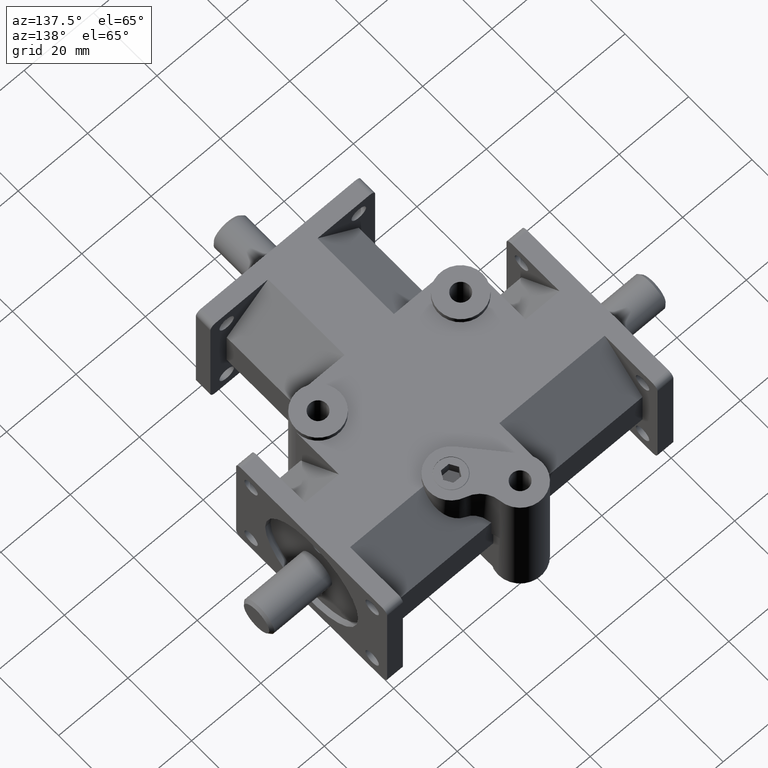
[diagram: clean part render]
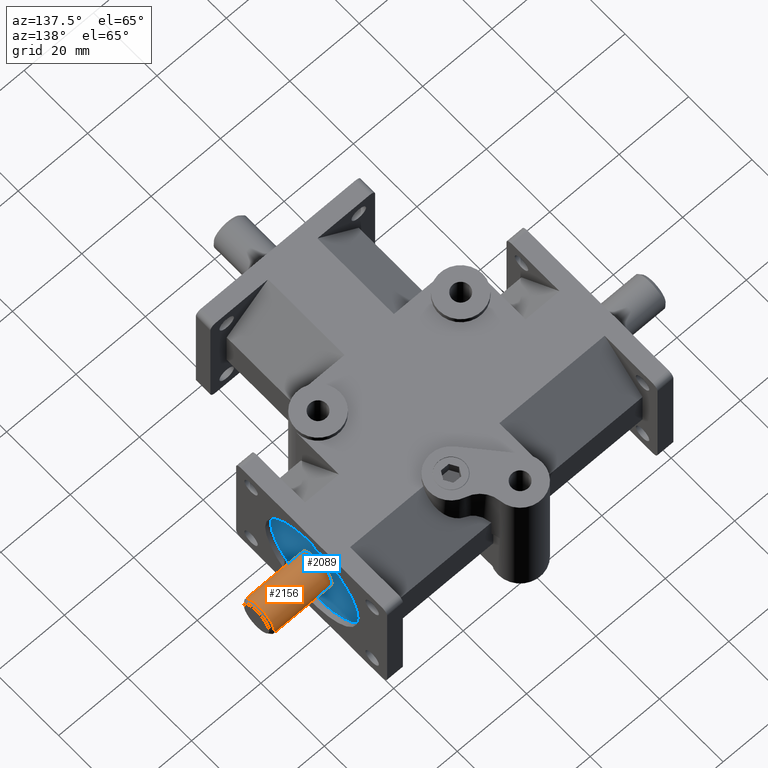
[diagram: same view with the hole feature highlighted: cylindrical wall and planar end face, labeled with their STEP entity ids]
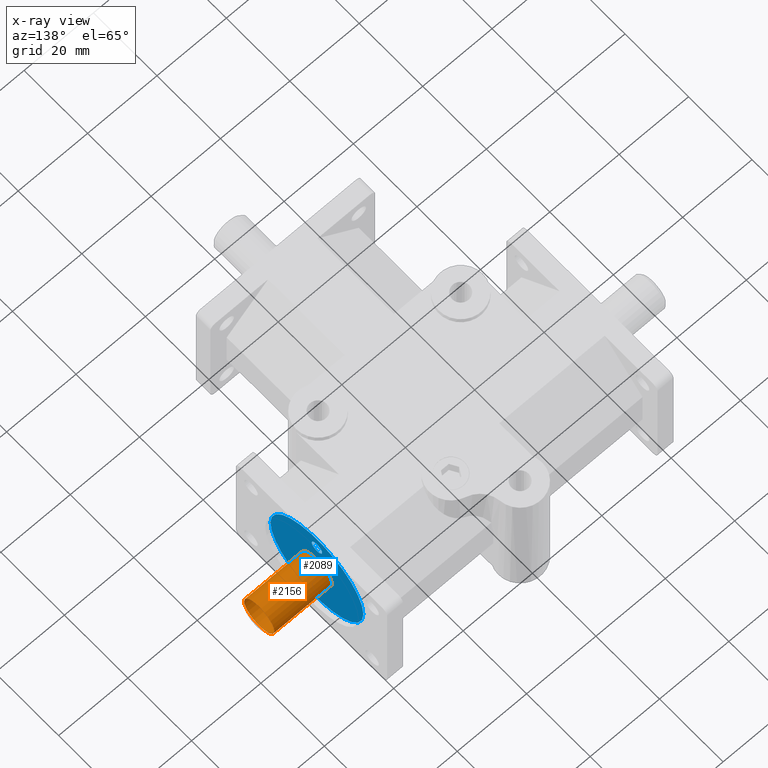
[diagram: x-ray of the same camera — body ghosted, the hole faces saturated]
A machine part, auxiliary view. The highlighted faces form one hole feature of diameter 9.525 mm: the cylindrical wall (entity #2156, orange) and its adjacent planar end face (entity #2089, blue) — they share a circular edge in the B-rep.
The next image is the same camera in x-ray (body ghosted, the hole faces saturated) — the bore reads through the body.
Wall:
#218=FACE_OUTER_BOUND('',#375,.T.);
#375=EDGE_LOOP('',(#1863,#1864,#1865,#1866,#1867));
#439=CIRCLE('',#2246,0.1875);
#512=CIRCLE('',#2386,0.1875);
#513=CIRCLE('',#2387,0.1875);
#691=LINE('',#3626,#886);
#886=VECTOR('',#2969,0.1875);
#940=VERTEX_POINT('',#3169);
#1099=VERTEX_POINT('',#3622);
#1100=VERTEX_POINT('',#3623);
#1151=EDGE_CURVE('',#940,#940,#439,.T.);
#1378=EDGE_CURVE('',#1099,#1100,#512,.T.);
#1379=EDGE_CURVE('',#1100,#1099,#513,.T.);
#1380=EDGE_CURVE('',#1100,#940,#691,.T.);
#1863=ORIENTED_EDGE('',*,*,#1378,.F.);
#1864=ORIENTED_EDGE('',*,*,#1379,.F.);
#1865=ORIENTED_EDGE('',*,*,#1380,.T.);
#1866=ORIENTED_EDGE('',*,*,#1151,.F.);
#1867=ORIENTED_EDGE('',*,*,#1380,.F.);
#2058=CYLINDRICAL_SURFACE('',#2385,0.1875);
#2156=ADVANCED_FACE('',(#218),#2058,.T.);
#2246=AXIS2_PLACEMENT_3D('',#3170,#2531,#2532);
#2385=AXIS2_PLACEMENT_3D('',#3621,#2963,#2964);
#2386=AXIS2_PLACEMENT_3D('',#3624,#2965,#2966);
#2387=AXIS2_PLACEMENT_3D('',#3625,#2967,#2968);
#2531=DIRECTION('center_axis',(-1.,0.,0.));
#2532=DIRECTION('ref_axis',(0.,1.,0.));
#2963=DIRECTION('center_axis',(1.,0.,0.));
#2964=DIRECTION('ref_axis',(0.,1.,0.));
#2965=DIRECTION('center_axis',(1.,0.,0.));
#2966=DIRECTION('ref_axis',(0.,-1.,0.));
#2967=DIRECTION('center_axis',(1.,0.,0.));
#2968=DIRECTION('ref_axis',(0.,-1.,0.));
#2969=DIRECTION('',(-1.,0.,0.));
#3169=CARTESIAN_POINT('',(1.565,2.,-2.29621274840129E-17));
#3170=CARTESIAN_POINT('Origin',(1.565,2.1875,0.));
#3621=CARTESIAN_POINT('Origin',(1.625,2.1875,0.));
#3622=CARTESIAN_POINT('',(2.22,2.375,2.29613691341696E-17));
#3623=CARTESIAN_POINT('',(2.22,2.,-2.29621274840129E-17));
#3624=CARTESIAN_POINT('Origin',(2.22,2.1875,0.));
#3625=CARTESIAN_POINT('Origin',(2.22,2.1875,0.));
#3626=CARTESIAN_POINT('',(1.625,2.,-2.29621274840129E-17));
End face:
#24=FACE_BOUND('',#274,.T.);
#25=FACE_BOUND('',#275,.T.);
#26=FACE_BOUND('',#276,.T.);
#72=PLANE('',#2245);
#151=FACE_OUTER_BOUND('',#273,.T.);
#273=EDGE_LOOP('',(#1474));
#274=EDGE_LOOP('',(#1475));
#275=EDGE_LOOP('',(#1476));
#276=EDGE_LOOP('',(#1477));
#424=CIRCLE('',#2219,0.064);
#426=CIRCLE('',#2223,0.064);
#435=CIRCLE('',#2239,0.5755);
#439=CIRCLE('',#2246,0.1875);
#925=VERTEX_POINT('',#3120);
#927=VERTEX_POINT('',#3127);
#936=VERTEX_POINT('',#3156);
#940=VERTEX_POINT('',#3169);
#1129=EDGE_CURVE('',#925,#925,#424,.T.);
#1132=EDGE_CURVE('',#927,#927,#426,.T.);
#1146=EDGE_CURVE('',#936,#936,#435,.T.);
#1151=EDGE_CURVE('',#940,#940,#439,.T.);
#1474=ORIENTED_EDGE('',*,*,#1146,.T.);
#1475=ORIENTED_EDGE('',*,*,#1151,.T.);
#1476=ORIENTED_EDGE('',*,*,#1129,.T.);
#1477=ORIENTED_EDGE('',*,*,#1132,.T.);
#2089=ADVANCED_FACE('',(#151,#24,#25,#26),#72,.T.);
#2219=AXIS2_PLACEMENT_3D('',#3121,#2470,#2471);
#2223=AXIS2_PLACEMENT_3D('',#3128,#2479,#2480);
#2239=AXIS2_PLACEMENT_3D('',#3158,#2516,#2517);
#2245=AXIS2_PLACEMENT_3D('',#3168,#2529,#2530);
#2246=AXIS2_PLACEMENT_3D('',#3170,#2531,#2532);
#2470=DIRECTION('center_axis',(-1.,0.,0.));
#2471=DIRECTION('ref_axis',(0.,1.,0.));
#2479=DIRECTION('center_axis',(-1.,0.,0.));
#2480=DIRECTION('ref_axis',(0.,1.,0.));
#2516=DIRECTION('center_axis',(1.,0.,0.));
#2517=DIRECTION('ref_axis',(0.,1.,0.));
#2529=DIRECTION('center_axis',(1.,0.,0.));
#2530=DIRECTION('ref_axis',(0.,-1.,0.));
#2531=DIRECTION('center_axis',(-1.,0.,0.));
#2532=DIRECTION('ref_axis',(0.,1.,0.));
#3120=CARTESIAN_POINT('',(1.565,2.1235,-0.41));
#3121=CARTESIAN_POINT('Origin',(1.565,2.1875,-0.41));
#3127=CARTESIAN_POINT('',(1.565,2.1235,0.41));
#3128=CARTESIAN_POINT('Origin',(1.565,2.1875,0.41));
#3156=CARTESIAN_POINT('',(1.565,1.612,7.04784232909302E-17));
#3158=CARTESIAN_POINT('Origin',(1.565,2.1875,0.));
#3168=CARTESIAN_POINT('Origin',(1.565,2.23154545454545,4.35173618258047E-18));
#3169=CARTESIAN_POINT('',(1.565,2.,-2.29621274840129E-17));
#3170=CARTESIAN_POINT('Origin',(1.565,2.1875,0.));